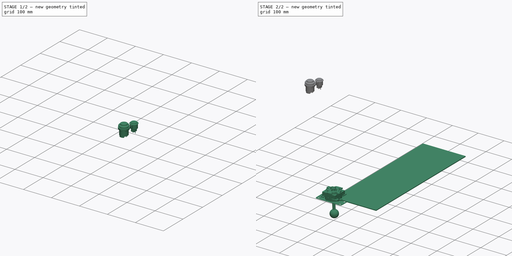
[diagram: build sequence overview — one tinted view per stage of 2, left to right]
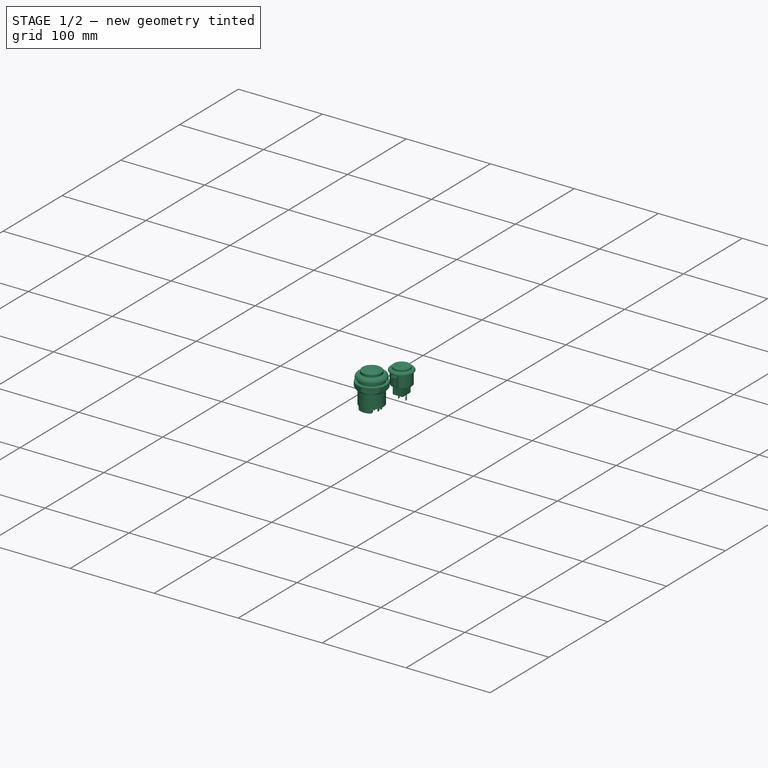
[diagram: stage 1 of 2 — iso view after this stage's code; geometry added in this stage tinted green]
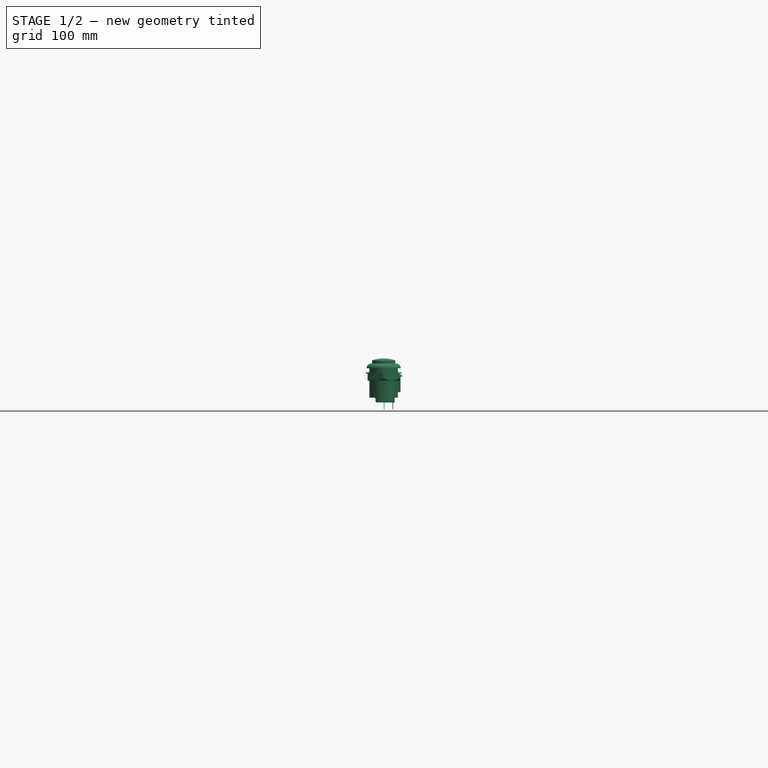
[diagram: stage 1 of 2 — front view after this stage's code; geometry added in this stage tinted green]
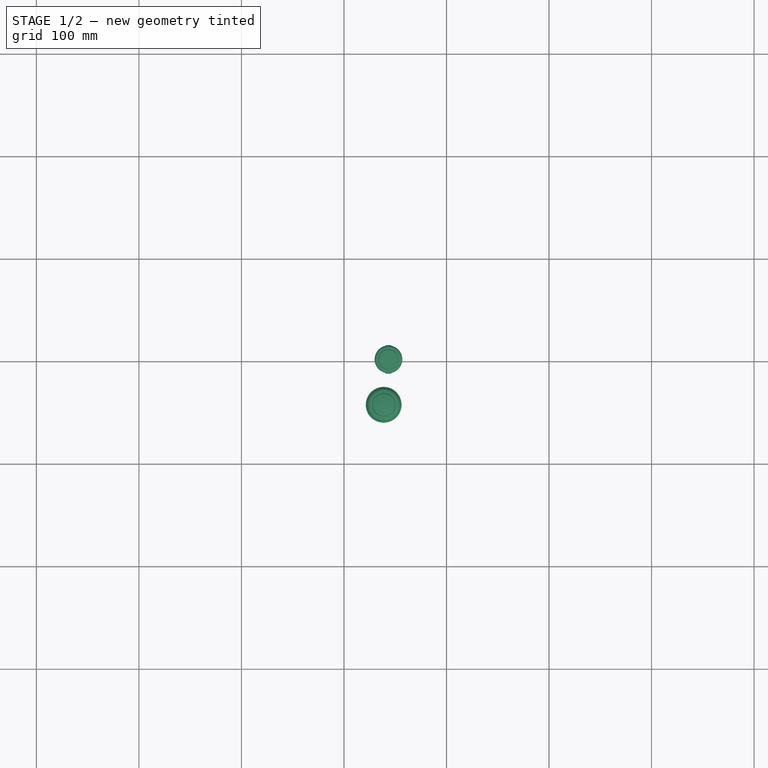
[diagram: stage 1 of 2 — top view after this stage's code; geometry added in this stage tinted green]
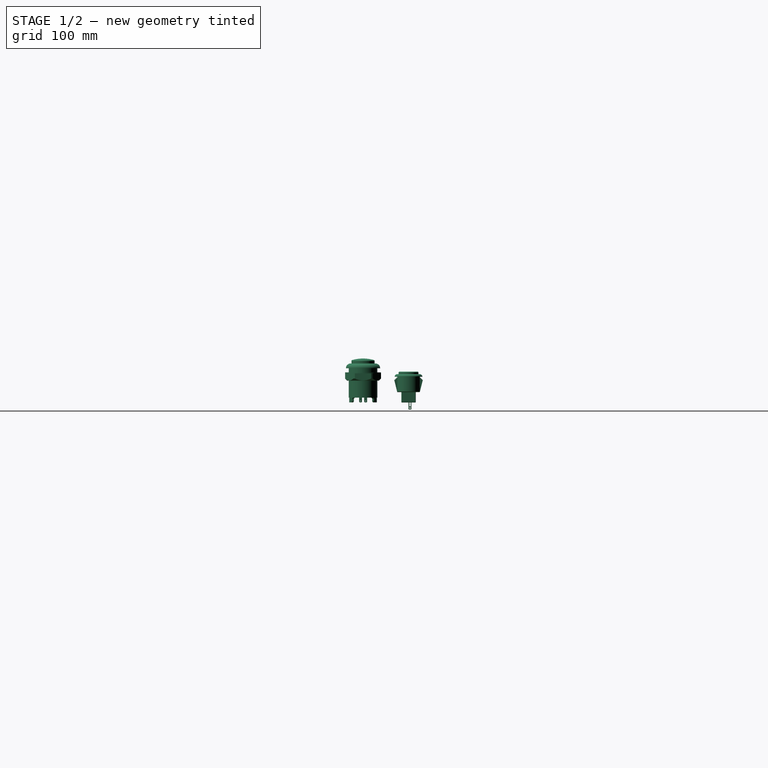
[diagram: stage 1 of 2 — right view after this stage's code; geometry added in this stage tinted green]
FCSTD DOCUMENT  (FreeCAD 0.20R29177 (Git))
Label: 1001_keyboard_500_3_Duo
License: All rights reserved
LicenseURL: http://en.wikipedia.org/wiki/All_rights_reserved
objects: Part::FeaturePython×3, Sketcher::SketchObject×2, PartDesign::Pad×1, Spreadsheet::Sheet×1, PartDesign::Body×1
note: 8 computed .brp shape members not serialized (recipe doc carries the construction recipe); baked Part::Feature solids carry a one-line shape summary decoded from their .brp

FEATURE [Part::FeaturePython] b_Arcade_Button_24mm_001_  label="Arcade Button 24mm_001"  # a2plus imported part (geometry in sourceFile) (typed FeaturePython)
  Placement = pos=(-56.6104,1.77286,382.185) rot=(0,0,1;0rad)
  a2p_Version = V0.1
  fixedPosition = false
  objectType = a2pPart
  sourceFile = .\..\CAD_LibraryII\Arcade Button 24mm.FCStd
  subassemblyImport = false
  timeLastImport = 1.63103e+09
  updateColors = true
FEATURE [Part::FeaturePython] b_Arcade_Button_29mm_001_  label="Arcade Button 29mm_001"  # a2plus imported part (geometry in sourceFile) (typed FeaturePython)
  Placement = pos=(-61.3098,-42.565,376.773) rot=(0,0,1;0rad)
  a2p_Version = V0.1
  fixedPosition = false
  objectType = a2pPart
  sourceFile = .\..\CAD_LibraryII\Arcade Button 29mm.FCStd
  subassemblyImport = false
  timeLastImport = 1.63103e+09
  updateColors = true
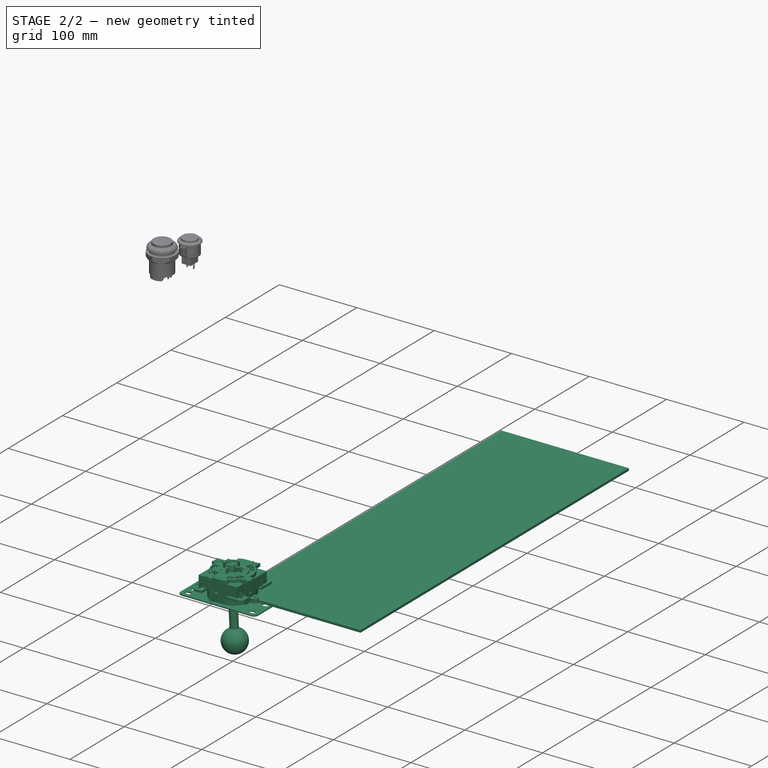
[diagram: stage 2 of 2 — iso view after this stage's code; geometry added in this stage tinted green]
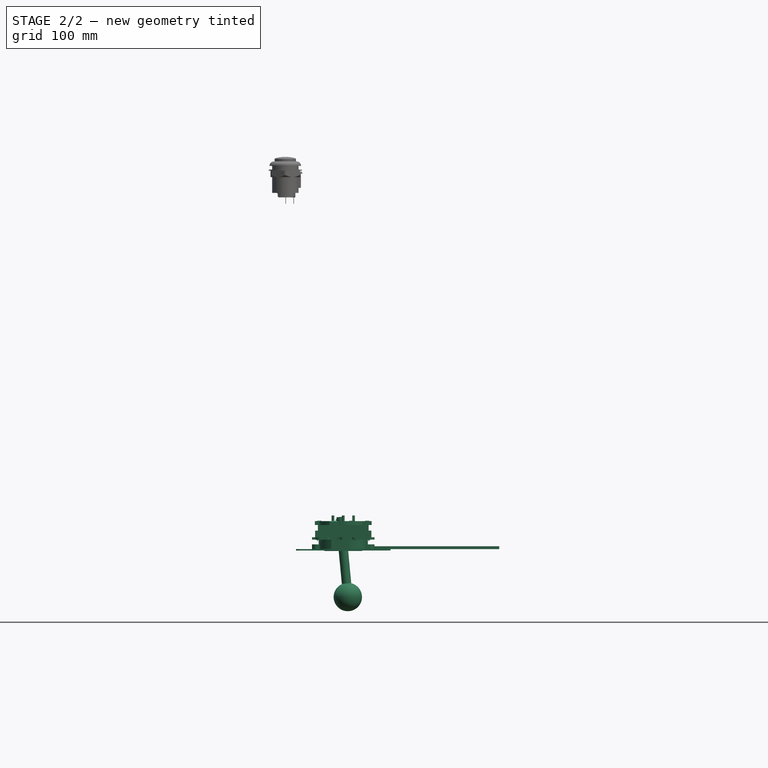
[diagram: stage 2 of 2 — front view after this stage's code; geometry added in this stage tinted green]
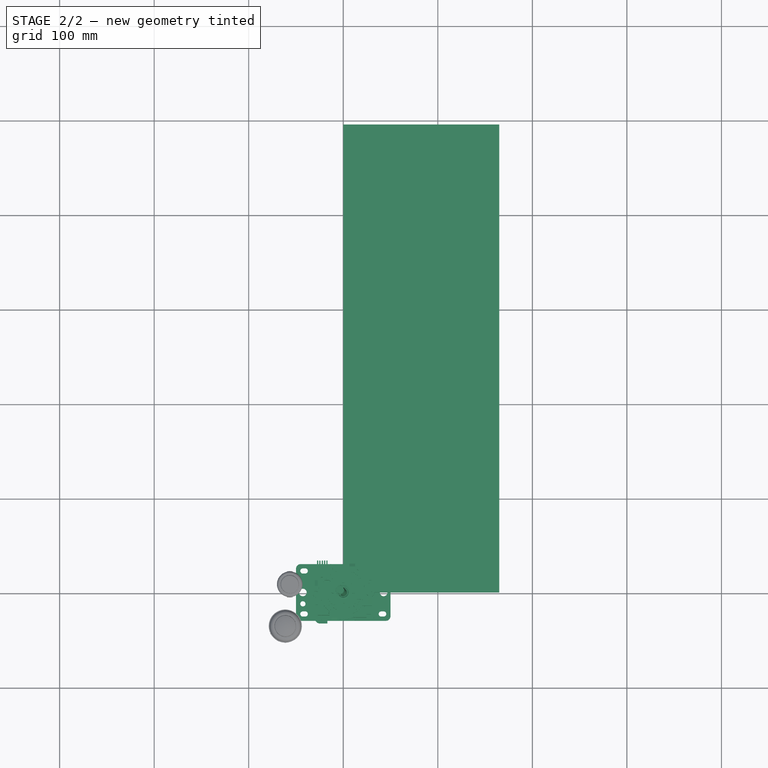
[diagram: stage 2 of 2 — top view after this stage's code; geometry added in this stage tinted green]
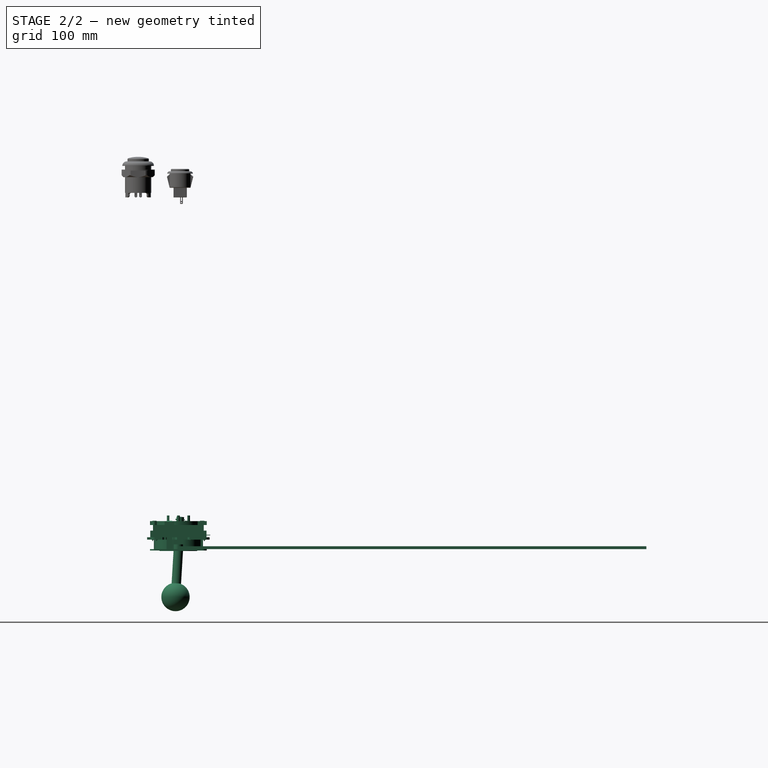
[diagram: stage 2 of 2 — right view after this stage's code; geometry added in this stage tinted green]
FEATURE [Sketcher::SketchObject] Sketch
  FullyConstrained = true
  MapMode = 5
  Support = -> [XY_Plane]
  expr: Constraints[5] = <<xls>>.k_w
  expr: Constraints[6] = <<xls>>.k_d
  sketch-geometry (5):
    g0: LineSegment StartX=0 StartY=495 StartZ=0 EndX=165 EndY=495 EndZ=0
    g1: LineSegment StartX=165 StartY=495 StartZ=0 EndX=165 EndY=0 EndZ=0
    g2: LineSegment StartX=165 StartY=0 StartZ=0 EndX=0 EndY=0 EndZ=0
    g3: LineSegment StartX=0 StartY=0 StartZ=0 EndX=0 EndY=247.5 EndZ=0
    g4: LineSegment StartX=0 StartY=247.5 StartZ=0 EndX=0 EndY=495 EndZ=0
  constraints (14):
    c: Coincident(g0,g1)
    c: Coincident(g1,g2)
    c: Horizontal(g0)
    c: Horizontal(g2)
    c: Vertical(g1)
    c: DistanceY(g1,g1) = 495
    c: DistanceX(g0,g0) = 165
    c: Coincident(g3,g2)
    c: Coincident(g4,g0)
    c: Equal(g3,g4)
    c: Vertical(g4)
    c: Vertical(g3)
    c: Coincident(g3,g4)
    c: Coincident(g2,g-1)
FEATURE [PartDesign::Pad] Pad
  AllowMultiFace = false
  Direction = (0,0,1)
  Length = 3
  Length2 = 100
  Profile = -> Sketch
  Type = 0
  expr: Length = <<xls>>.k_t_0
FEATURE [Spreadsheet::Sheet] Spreadsheet  label="xls"
  cells = B3=KEABOPARD; B4=Thickness; C4=k_t_0; D4(k_t_0)=3; E4=mm; F4=Note:; G4=Plexi is 3mm; B5=Width; C5=k_w; D5(k_w)=495; E5=mm; B6=Deapth; C6=k_d; D6(k_d)=165; E6=mm; B8=Joystick; B9=hole_to_edge; D9(hole_to_edge)=80; E9=mm
FEATURE [Sketcher::SketchObject] Sketch001
  ExternalGeometry = -> [Pad]
  FullyConstrained = true
  MapMode = 5
  Placement = pos=(0,0,3) rot=(0,0,1;0rad)
  Support = -> [Pad]
  sketch-geometry (8):
    g0: LineSegment StartX=0 StartY=495 StartZ=0 EndX=25 EndY=495 EndZ=0
    g1: LineSegment StartX=25 StartY=495 StartZ=0 EndX=25 EndY=0 EndZ=0
    g2: LineSegment StartX=25 StartY=0 StartZ=0 EndX=0 EndY=0 EndZ=0
    g3: LineSegment StartX=0 StartY=0 StartZ=0 EndX=0 EndY=495 EndZ=0
    g4: LineSegment StartX=25 StartY=495 StartZ=0 EndX=130 EndY=495 EndZ=0
    g5: LineSegment StartX=130 StartY=495 StartZ=0 EndX=130 EndY=0 EndZ=0
    g6: LineSegment StartX=130 StartY=0 StartZ=0 EndX=25 EndY=0 EndZ=0
    g7: LineSegment StartX=25 StartY=0 StartZ=0 EndX=25 EndY=495 EndZ=0
  constraints (22):
    c: Coincident(g0,g1)
    c: Coincident(g1,g2)
    c: Coincident(g2,g3)
    c: Coincident(g3,g0)
    c: Horizontal(g0)
    c: Horizontal(g2)
    c: Vertical(g1)
    c: Vertical(g3)
    c: Coincident(g0,g-3)
    c: PointOnObject(g1,g-1)
    c: Coincident(g4,g5)
    c: Coincident(g5,g6)
    c: Coincident(g6,g7)
    c: Coincident(g7,g4)
    c: Horizontal(g4)
    c: Horizontal(g6)
    c: Vertical(g5)
    c: Vertical(g7)
    c: Coincident(g4,g0)
    c: PointOnObject(g5,g-1)
    c: DistanceX(g0,g0) = 25
    c: DistanceX(g4,g4) = 105
FEATURE [PartDesign::Body] Body
  Group = -> [Sketch,Pad,Sketch001]
  Origin = -> Origin
  Tip = -> Pad
FEATURE [Part::FeaturePython] b_joystick01_001_  label="joystick01_001"  # a2plus imported part (geometry in sourceFile) (typed FeaturePython)
  a2p_Version = V0.1
  fixedPosition = true
  objectType = a2pPart
  sourceFile = .\..\CAD_LibraryII\joystick01.FCStd
  subassemblyImport = false
  timeLastImport = 1.63103e+09
  updateColors = true
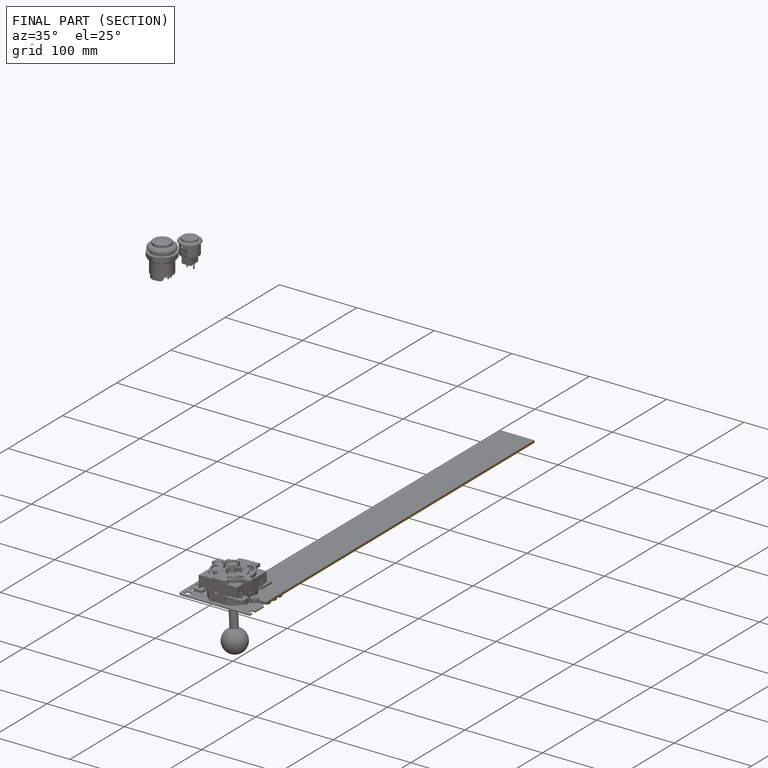
[diagram: finished part — half-section view (interior)]
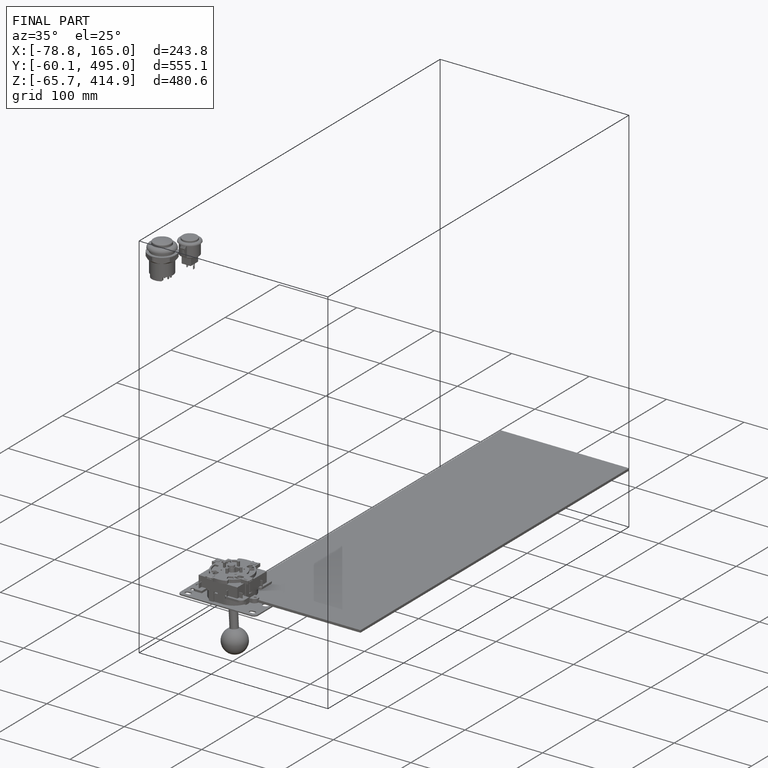
[diagram: finished part — iso view with bounding-box wireframe]
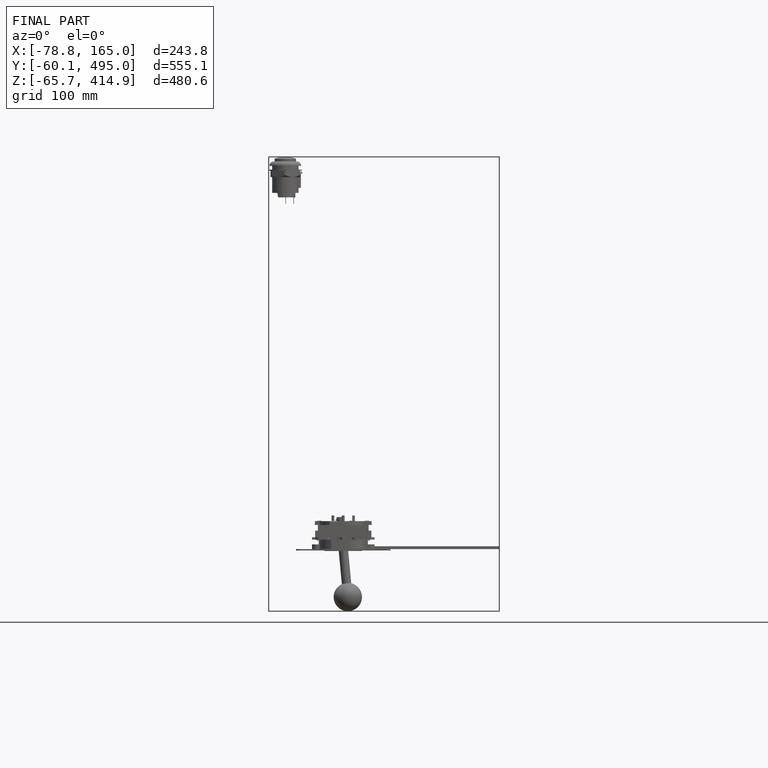
[diagram: finished part — front view with bounding-box wireframe]
